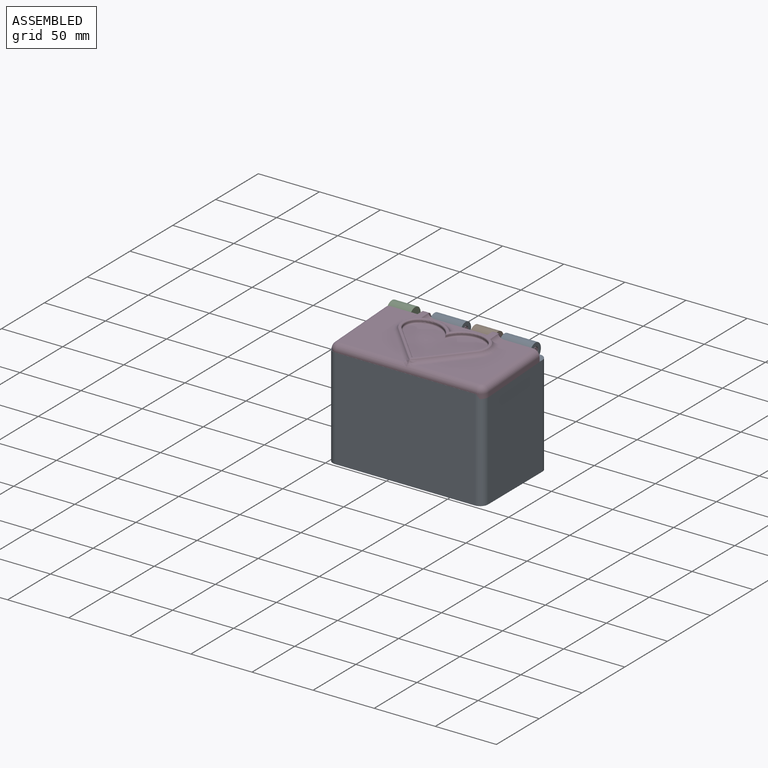
[diagram: assembled view]
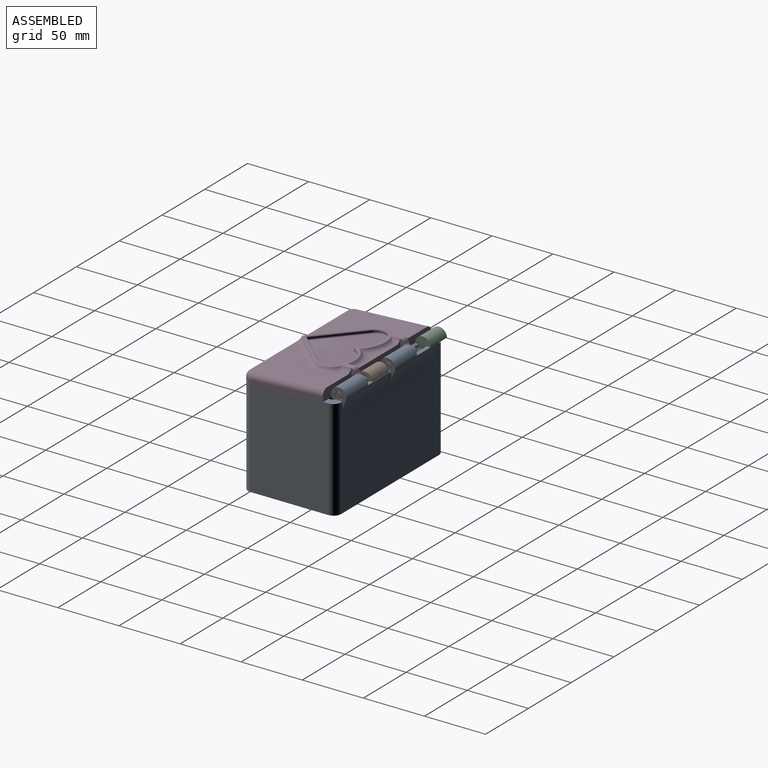
[diagram: assembled view, second angle]
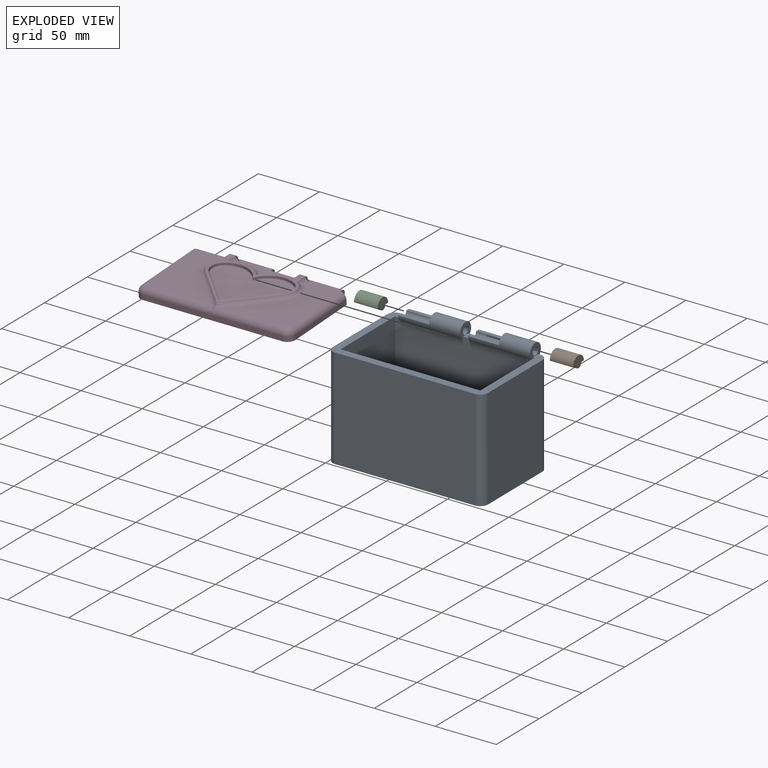
[diagram: exploded view]
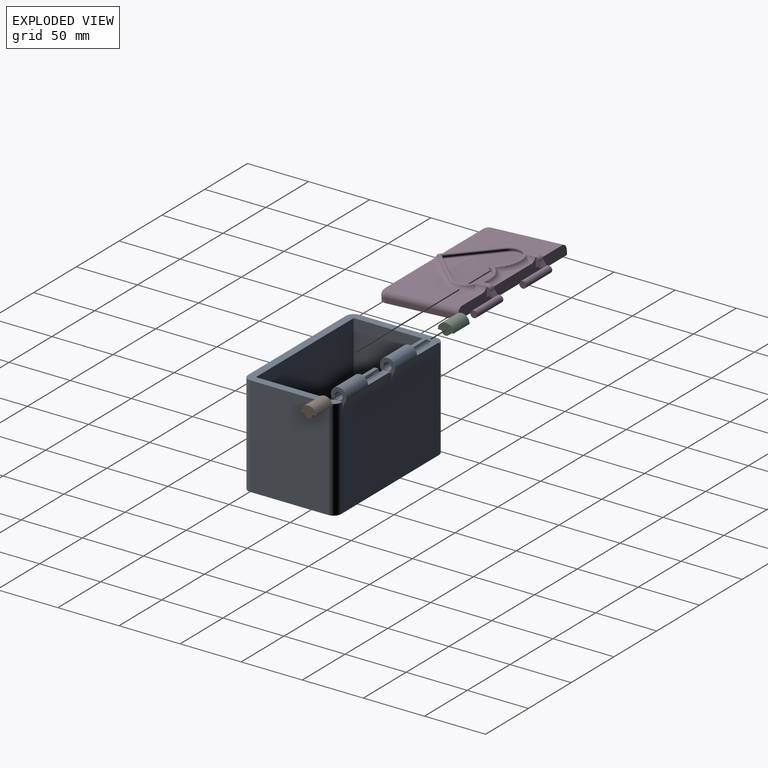
[diagram: exploded view, second angle]
ASSEMBLY  parts=4 mates=4
PART A: 34 faces, bbox 127x79.4x92.2 mm
  f0: plane 127x76.2mm, normal (0,0,1), area 1699.3mm2, adj f1,f2,f3,f4,f5,f6,f7,f8
  f1: cylinder r=6.35mm len=82.55mm, axis (0,0,-1), area 823.4mm2, adj f0,f2,f8,f9
  f2: plane 114.3x82.55mm, normal (0,-1,0), area 8704.9mm2, adj f0,f1,f3,f9,f10,f17,f18,f24
  f3: cylinder r=6.35mm len=82.55mm, axis (0,0,-1), area 823.4mm2, adj f0,f2,f4,f9
  f4: plane 82.55x63.5mm, normal (1,0,0), area 5241.9mm2, adj f0,f3,f5,f9
  f5: cylinder r=6.35mm len=82.55mm, axis (0,0,-1), area 823.4mm2, adj f0,f4,f6,f9
  f6: plane 114.3x82.55mm, normal (0,1,0), area 9435.5mm2, adj f0,f5,f7,f9
  f7: cylinder r=6.35mm len=82.55mm, axis (0,0,-1), area 823.4mm2, adj f0,f6,f8,f9
  f8: plane 82.55x63.5mm, normal (-1,0,0), area 5241.9mm2, adj f0,f1,f7,f9
  f9: plane 127x76.2mm, normal (0,0,-1), area 9642.8mm2, adj f1,f2,f3,f4,f5,f6,f7,f8
  f10: plane 6.35x6.35mm, normal (0,0,1), area 40.3mm2, adj f2,f13,f18,f24
  f11: plane 114.3x63.5mm, normal (0,0,1), area 7258mm2, adj f12,f13,f14,f15
  f12: plane 76.2x63.5mm, normal (1,0,0), area 4838.7mm2, adj f0,f11,f13,f15
  f13: plane 114.3x76.2mm, normal (0,1,0), area 7977.6mm2, adj f0,f10,f11,f12,f14,f17,f18,f24
  f14: plane 76.2x63.5mm, normal (-1,0,0), area 4838.7mm2, adj f0,f11,f13,f15
  f15: plane 114.3x76.2mm, normal (0,-1,0), area 8709.7mm2, adj f0,f11,f12,f14
  f16: cylinder r=6.35mm len=50.8mm, axis (-1,0,0), area 884.6mm2, adj f17,f18,f20,f21,f22,f32,f33
  f17: plane 12.7x10.53mm, normal (1,0,0), area 34.8mm2, adj f0,f2,f13,f16,f19,f20,f21,f32
  f18: plane 16.88x12.7mm, normal (-1,0,0), area 82.3mm2, adj f2,f10,f13,f16,f19,f32,f33
  f19: cylinder r=3.17mm len=50.8mm, axis (-1,0,0), area 760.1mm2, adj f17,f18,f20,f21,f22
  f20: plane 25.4x3.18mm, normal (0,0,1), area 80.6mm2, adj f16,f17,f19,f22
  f21: plane 25.4x3.18mm, normal (0,0,1), area 80.6mm2, adj f16,f17,f19,f22
  f22: plane 12.7x6.35mm, normal (1,0,0), area 47.5mm2, adj f16,f19,f20,f21
  f23: cylinder r=6.35mm len=50.8mm, axis (-1,0,0), area 884.6mm2, adj f24,f25,f27,f28,f29,f30,f31
  f24: plane 12.7x10.54mm, normal (1,0,0), area 34.8mm2, adj f2,f10,f13,f23,f26,f27,f28,f30
  f25: plane 16.89x12.7mm, normal (-1,0,0), area 82.3mm2, adj f0,f2,f13,f23,f26,f30,f31
  f26: cylinder r=3.17mm len=50.8mm, axis (-1,0,0), area 760.1mm2, adj f24,f25,f27,f28,f29
  f27: plane 25.4x3.18mm, normal (0,0,1), area 80.6mm2, adj f23,f24,f26,f29
  f28: plane 25.4x3.18mm, normal (0,0,1), area 80.6mm2, adj f23,f24,f26,f29
  f29: plane 12.7x6.35mm, normal (1,0,0), area 47.5mm2, adj f23,f26,f27,f28
  f30: cylinder r=12.7mm len=50.8mm, axis (-1,0,0), area 377.3mm2, adj f2,f23,f24,f25
  f31: cylinder r=12.7mm len=50.8mm, axis (-1,0,0), area 378.4mm2, adj f13,f23,f24,f25
  f32: cylinder r=12.7mm len=50.8mm, axis (-1,0,0), area 377.9mm2, adj f2,f16,f17,f18
  f33: cylinder r=12.7mm len=50.8mm, axis (-1,0,0), area 377.9mm2, adj f13,f16,f17,f18
PART B: 6 faces, bbox 19.1x12.7x9.5 mm
  f0: plane 19.05x3.18mm, normal (0,0,-1), area 60.5mm2, adj f1,f3,f4,f5
  f1: cylinder r=3.17mm len=19.05mm, axis (-1,0,0), area 190mm2, adj f0,f2,f4,f5
  f2: plane 19.05x3.18mm, normal (0,0,-1), area 60.5mm2, adj f1,f3,f4,f5
  f3: cylinder r=6.35mm len=19.05mm, axis (-1,0,0), area 380mm2, adj f0,f2,f4,f5
  f4: plane 12.7x9.53mm, normal (1,0,0), area 79.2mm2, adj f0,f1,f2,f3
  f5: plane 12.7x9.53mm, normal (-1,0,0), area 79.2mm2, adj f0,f1,f2,f3
PART C: same geometry as B
PART D: 73 faces, bbox 127.1x14.1x75.9 mm
  f0: plane 8.92x5.57mm, normal (-1,0,0), area 26mm2, adj f14,f16,f18,f29,f72
  f1: plane 60.96x51.87mm, normal (0,-1,0), area 1750.9mm2, adj f14,f32,f33,f34,f36,f37,f40,f41
  f2: plane 12.06x9.79mm, normal (1,0,0), area 50.5mm2, adj f14,f16,f18,f29,f72
  f3: plane 8.92x5.57mm, normal (-1,0,0), area 26mm2, adj f14,f15,f17,f28,f71
  f4: plane 70.17x59.79mm, normal (0,-1,0), area 241.3mm2, adj f28,f29,f40,f43,f48,f50,f51,f52
  f5: plane 60.96x51.87mm, normal (0,-1,0), area 1731.4mm2, adj f14,f30,f31,f32,f42,f43,f44,f45
  f6: plane 42.65x7.45mm, normal (0,-1,0), area 106.4mm2, adj f14,f38,f39,f47,f48,f49,f50
  f7: plane 127x66.04mm, normal (0,1,0), area 8369.8mm2, adj f9,f10,f11,f12,f13,f14
  f8: plane 12.06x9.79mm, normal (1,0,0), area 50.5mm2, adj f14,f15,f17,f28,f71
  f9: plane 59.69x3.81mm, normal (1,0,0), area 227.4mm2, adj f7,f10,f14,f30
  f10: cylinder r=6.35mm len=6.35mm, axis (0,-1,0), area 38mm2, adj f7,f9,f11,f31
  f11: plane 114.3x3.81mm, normal (0,0,1), area 435.5mm2, adj f7,f10,f12,f32
  f12: cylinder r=6.35mm len=6.35mm, axis (0,-1,0), area 38mm2, adj f7,f11,f13,f33
  f13: plane 59.69x3.81mm, normal (-1,0,0), area 227.4mm2, adj f7,f12,f14,f34
  f14: plane 127.08x12.14mm, normal (0,0,-1), area 1076.1mm2, adj f0,f1,f2,f3,f5,f6,f7,f8
  f15: cylinder r=2.79mm len=30.48mm, axis (1,0,0), area 522.1mm2, adj f3,f8,f17,f19,f71
  f16: cylinder r=2.79mm len=30.48mm, axis (1,0,0), area 522.1mm2, adj f0,f2,f18,f20,f72
  f17: plane 5.08x3.69mm, normal (0,-0.57,-0.82), area 22.7mm2, adj f3,f8,f15,f28
  f18: plane 5.08x3.69mm, normal (0,-0.57,-0.82), area 22.7mm2, adj f0,f2,f16,f29
  f19: plane 5.59x5.59mm, normal (-1,0,0), area 24.5mm2, adj f15
  f20: plane 5.59x5.59mm, normal (-1,0,0), area 24.5mm2, adj f16
  f21: plane 31.21x30.47mm, normal (0.72,0,-0.7), area 49.9mm2, adj f22,f26,f54,f62
  f22: plane 31.21x30.47mm, normal (-0.72,0,-0.7), area 49.9mm2, adj f21,f23,f56,f60
  f23: cylinder r=9.95mm len=15.42mm, axis (0,1,0), area 20.4mm2, adj f22,f24,f55,f58
  f24: cylinder r=20.17mm len=28.57mm, axis (0,1,0), area 38.1mm2, adj f23,f25,f53,f57
  f25: cylinder r=20.17mm len=28.57mm, axis (0,1,0), area 38.1mm2, adj f24,f26,f51,f59
  f26: cylinder r=9.95mm len=15.42mm, axis (0,1,0), area 20.4mm2, adj f21,f25,f52,f61
  f27: plane 64.56x47.16mm, normal (0,-1,0), area 1789.2mm2, adj f57,f58,f59,f60,f61,f62
  f28: cylinder r=3.17mm len=5.08mm, axis (1,0,0), area 25.3mm2, adj f3,f4,f8,f17,f42,f49
  f29: cylinder r=3.17mm len=5.08mm, axis (1,0,0), area 25.3mm2, adj f0,f2,f4,f18,f41,f47
  f30: cylinder r=5.08mm len=59.69mm, axis (0,0,1), area 476.3mm2, adj f5,f9,f14,f31
  f31: torus R=1.27mm, axis (0,-1,0), area 56.5mm2, adj f5,f10,f30,f32
  f32: cylinder r=5.08mm len=114.3mm, axis (-1,0,0), area 886.3mm2, adj f1,f5,f11,f31,f33,f35,f46
  f33: torus R=1.27mm, axis (0,-1,0), area 56.5mm2, adj f1,f12,f32,f34
  f34: cylinder r=5.08mm len=59.69mm, axis (0,0,-1), area 476.3mm2, adj f1,f13,f14,f33
  f35: bspline ~12.2x9.01mm, area 29.5mm2, adj f32,f36,f46,f65
  f36: cylinder r=5.08mm len=32.85mm, axis (0.7,0,0.72), area 226.1mm2, adj f1,f35,f37,f64
  f37: torus R=17.09mm, axis (0,-1,0), area 135.3mm2, adj f1,f36,f40,f63
  f38: torus R=27.3mm, axis (0,-1,0), area 148mm2, adj f6,f39,f50,f69
  f39: torus R=27.3mm, axis (0,-1,0), area 133.7mm2, adj f6,f38,f48,f70
  f40: cylinder r=5.08mm len=9.39mm, axis (0,0,-1), area 45.4mm2, adj f1,f4,f37,f41,f63
  f41: bspline ~4.71x3.18mm, area 0.8mm2, adj f1,f14,f29,f40
  f42: bspline ~4.71x3.18mm, area 0.8mm2, adj f5,f14,f28,f43
  f43: cylinder r=5.08mm len=11.67mm, axis (0,0,1), area 59.9mm2, adj f4,f5,f42,f44,f68
  f44: torus R=17.09mm, axis (0,-1,0), area 116.2mm2, adj f5,f43,f45,f68
  f45: cylinder r=5.08mm len=32.85mm, axis (-0.7,0,0.72), area 226.1mm2, adj f5,f44,f46,f67
  f46: bspline ~11.57x8.4mm, area 29.5mm2, adj f32,f35,f45,f66
  f47: bspline ~4.71x3.18mm, area 0.8mm2, adj f6,f14,f29,f48
  f48: cylinder r=5.08mm len=6.98mm, axis (0,0,1), area 21.7mm2, adj f4,f6,f39,f47,f70
  f49: bspline ~4.71x3.18mm, area 0.8mm2, adj f6,f14,f28,f50
  f50: cylinder r=5.08mm len=7.98mm, axis (0,0,-1), area 25.7mm2, adj f4,f6,f38,f49,f69
  f51: torus R=21.18mm, axis (0,-1,0), area 52.8mm2, adj f4,f25,f52,f53
  f52: torus R=10.96mm, axis (0,-1,0), area 29.5mm2, adj f4,f26,f51,f54
  f53: torus R=21.18mm, axis (0,-1,0), area 52.8mm2, adj f4,f24,f51,f55
  f54: cylinder r=1.02mm len=32.66mm, axis (-0.7,0,-0.72), area 70.4mm2, adj f4,f21,f52,f56
  f55: torus R=10.96mm, axis (0,-1,0), area 29.5mm2, adj f4,f23,f53,f56
  f56: cylinder r=1.02mm len=32.66mm, axis (-0.7,0,0.72), area 70.4mm2, adj f4,f22,f54,f55
  f57: torus R=19.15mm, axis (0,-1,0), area 54.1mm2, adj f24,f27,f58,f59
  f58: torus R=8.93mm, axis (0,-1,0), area 27.4mm2, adj f23,f27,f57,f60
  f59: torus R=19.15mm, axis (0,-1,0), area 54.1mm2, adj f25,f27,f57,f61
  f60: cylinder r=1.02mm len=31.92mm, axis (0.7,0,-0.72), area 68.8mm2, adj f22,f27,f58,f62
  f61: torus R=8.93mm, axis (0,-1,0), area 27.4mm2, adj f26,f27,f59,f62
  f62: cylinder r=1.02mm len=31.92mm, axis (0.7,0,0.72), area 68.8mm2, adj f21,f27,f60,f61
  f63: torus R=11.74mm, axis (0,1,0), area 23.6mm2, adj f4,f37,f40,f64
  f64: cylinder r=1.02mm len=30.35mm, axis (0.7,0,0.72), area 45.2mm2, adj f4,f36,f63,f65
  f65: bspline ~6.44x6.43mm, area 4.8mm2, adj f4,f35,f64,f66
  f66: bspline ~5.73x5.7mm, area 4.8mm2, adj f4,f46,f65,f67
  f67: cylinder r=1.02mm len=30.35mm, axis (-0.7,0,0.72), area 45.2mm2, adj f4,f45,f66,f68
  f68: torus R=11.74mm, axis (0,1,0), area 20mm2, adj f4,f43,f44,f67
  f69: torus R=21.95mm, axis (0,1,0), area 33.1mm2, adj f4,f38,f50,f70
  f70: torus R=21.95mm, axis (0,1,0), area 30.2mm2, adj f4,f39,f48,f69
  f71: cylinder r=2.11mm len=5.08mm, axis (-1,0,0), area 33.7mm2, adj f3,f8,f14,f15
  f72: cylinder r=2.11mm len=5.08mm, axis (-1,0,0), area 33.7mm2, adj f0,f2,f14,f16
PLACE A rot(axis=(0,0,-1),180deg) t=(121.76,87.74,114.31)mm fixed
PLACE B rot(axis=(0,-0.03,1),180deg) t=(142.08,120.51,200.19)mm
PLACE C rot(axis=(0,0,-1),180deg) t=(74.14,120.52,200.19)mm
PLACE D rot(axis=(0,-0.73,0.69),180deg) t=(117.32,85.3,204.4)mm
MATE planar D.f0 <-> A.f29  axis (1,0,0) through (147.16,115.29,204.74)mm
MATE fastened B.f1 <-> D.f15  axis (1,0,0) through (142.08,120.51,200.19)mm
MATE fastened A.f16 <-> C.f1  axis (1,0,0) through (64.61,120.52,200.19)mm
MATE cylindrical D.f15 <-> A.f23  axis (1,0,0) through (172.56,120.51,200.19)mm
